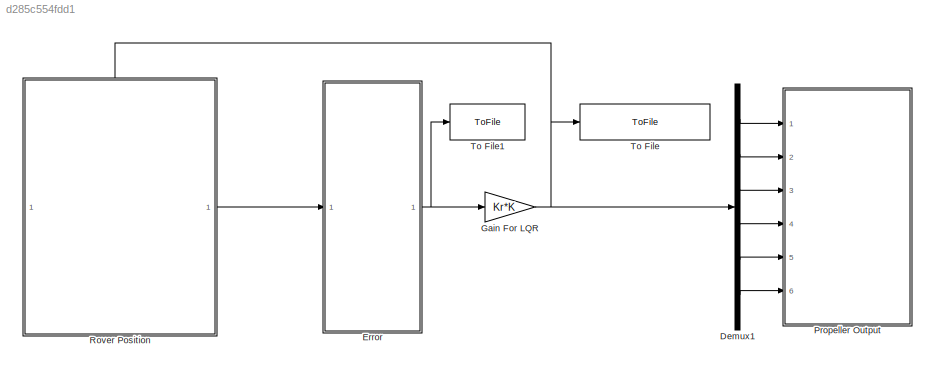
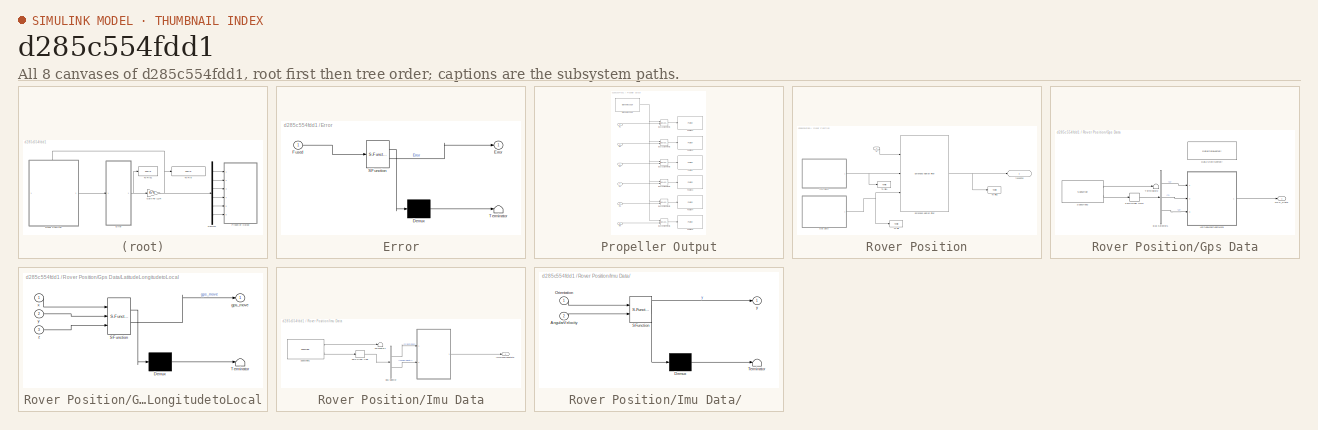
[diagram: thumbnail index - all 8 canvases of the model, root first then tree order]
MODEL slx_d285c554fdd1
KIND model
CONFIG AbsTol = auto
CONFIG EnableMultiTasking = off
CONFIG FixedStep = auto
CONFIG MaxStep = auto
CONFIG MinStep = auto
CONFIG RelTol = 1e-3
CONFIG SampleTimeConstraint = Unconstrained
CONFIG SolverName = VariableStepAuto
CONFIG StartTime = 0.0
CONFIG StopTime = 60.0
WORKSPACE source: mxarray member
WORKSPACE Gps_Data: Simulink.Signal (value not decoded)
BLOCK [Demux] Demux1
  Outputs = 6
  Ports = [1, 6]
BLOCK [SubSystem] Error
  ErrorFcn = Stateflow.Translate.translate
  PermitHierarchicalResolution = ExplicitOnly
  Ports = [1, 1]
  RequestExecContextInheritance = off
  SFBlockType = MATLAB Function
  TreatAsAtomicUnit = on
BLOCK [Demux] Error/ Demux 
  Outputs = 1
  Ports = [1, 1]
BLOCK [S-Function] Error/ SFunction 
  EnableBusSupport = on
  FunctionName = sf_sfun
  PortCounts = [1 2]
  Ports = [1, 2]
  SFcnIsStateOwnerBlock = off
  SFunctionDeploymentMode = off
  Tag = Stateflow S-Function 4
BLOCK [Terminator] Error/ Terminator 
BLOCK [Outport] Error/Error
BLOCK [Inport] Error/Fused
BLOCK [Gain] Gain For LQR
  Gain = Kr*K
  Multiplication = Matrix(K*u)
  RndMeth = Round
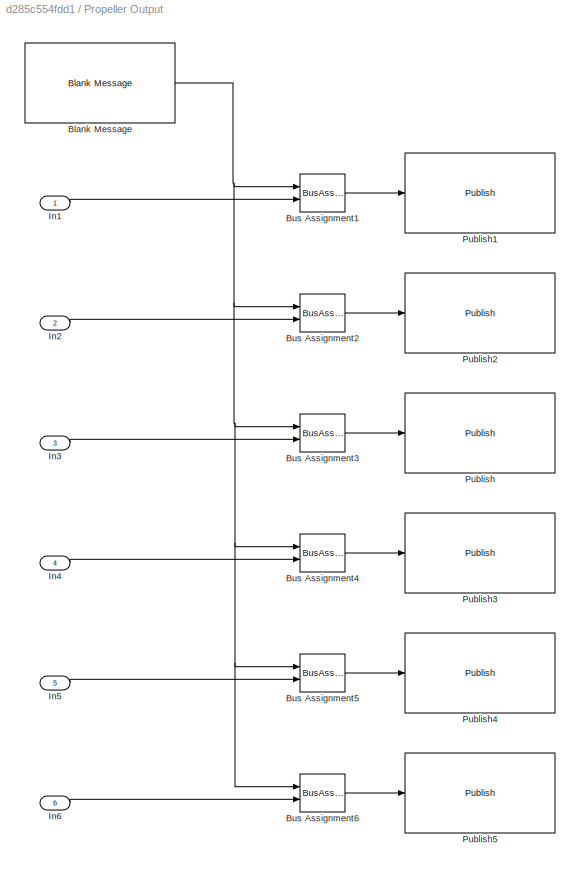
BLOCK [SubSystem] Propeller Output
  Ports = [6]
  RequestExecContextInheritance = off
BLOCK [Reference] Propeller Output/Blank Message  REF=robotlib/Blank Message
  Ports = [0, 1]
  SourceBlock = robotlib/Blank Message
  SourceProductBaseCode = RR
  SourceType = ROS Blank Message
BLOCK [BusAssignment] Propeller Output/Bus Assignment1
  AssignedSignals = Data
  Ports = [2, 1]
BLOCK [BusAssignment] Propeller Output/Bus Assignment2
  AssignedSignals = Data
  Ports = [2, 1]
BLOCK [BusAssignment] Propeller Output/Bus Assignment3
  AssignedSignals = Data
  Ports = [2, 1]
BLOCK [BusAssignment] Propeller Output/Bus Assignment4
  AssignedSignals = Data
  Ports = [2, 1]
BLOCK [BusAssignment] Propeller Output/Bus Assignment5
  AssignedSignals = Data
  Ports = [2, 1]
BLOCK [BusAssignment] Propeller Output/Bus Assignment6
  AssignedSignals = Data
  Ports = [2, 1]
BLOCK [Inport] Propeller Output/In1
  IconDisplay = Signal name
BLOCK [Inport] Propeller Output/In2
  IconDisplay = Signal name
  Port = 2
BLOCK [Inport] Propeller Output/In3
  IconDisplay = Signal name
  Port = 3
BLOCK [Inport] Propeller Output/In4
  IconDisplay = Signal name
  Port = 4
BLOCK [Inport] Propeller Output/In5
  IconDisplay = Signal name
  Port = 5
BLOCK [Inport] Propeller Output/In6
  IconDisplay = Signal name
  Port = 6
BLOCK [Reference] Propeller Output/Publish  REF=robotlib/Publish
  Ports = [1]
  SourceBlock = robotlib/Publish
  SourceProductBaseCode = RR
  SourceType = ROS Publish
BLOCK [Reference] Propeller Output/Publish1  REF=robotlib/Publish
  Ports = [1]
  SourceBlock = robotlib/Publish
  SourceProductBaseCode = RR
  SourceType = ROS Publish
BLOCK [Reference] Propeller Output/Publish2  REF=robotlib/Publish
  Ports = [1]
  SourceBlock = robotlib/Publish
  SourceProductBaseCode = RR
  SourceType = ROS Publish
BLOCK [Reference] Propeller Output/Publish3  REF=robotlib/Publish
  Ports = [1]
  SourceBlock = robotlib/Publish
  SourceProductBaseCode = RR
  SourceType = ROS Publish
BLOCK [Reference] Propeller Output/Publish4  REF=robotlib/Publish
  Ports = [1]
  SourceBlock = robotlib/Publish
  SourceProductBaseCode = RR
  SourceType = ROS Publish
BLOCK [Reference] Propeller Output/Publish5  REF=robotlib/Publish
  Ports = [1]
  SourceBlock = robotlib/Publish
  SourceProductBaseCode = RR
  SourceType = ROS Publish
BLOCK [SubSystem] Rover Position
  PortSchema = {"entries":[{"content":{"sides":[{"content":{"connectorIds":[]},"type":"ConnectorPlacement.EquallySpacedRectSide","uuid":"70bf1008-d6b2-49b6-af88-753ab581769c"},{"content":{"connectorIds":["Out1"],"side":"RIGHT"},"type":"ConnectorPlacement.EquallySpacedRectSide","uuid":"04ddecda-8c46-4437-987b-fe54c22cd984"},{"content":{"connectorIds":["In1"],"side":"TOP"},"type":"ConnectorPlacement.EquallySpacedR...<+240ch>
  Ports = [1, 1]
  RequestExecContextInheritance = off
BLOCK [Reference] Rover Position/Extended Kalman Filter  REF=sharedTrackingLibrary/Extended Kalman Filter
  Ports = [3, 1]
  SourceBlock = sharedTrackingLibrary/Extended Kalman Filter
  SourceProductBaseCode = CT,DR,TF,ID,LP,NV,AR,RO,RR,UV,VE
  SourceType = Extended Kalman Filter
BLOCK [SubSystem] Rover Position/Gps Data
  Ports = [0, 1]
  RequestExecContextInheritance = off
BLOCK [BusSelector] Rover Position/Gps Data/Bus Selector1
  OutputSignals = Pose.Pose.Position.X,Pose.Pose.Position.Y,Pose.Pose.Position.Z
  Ports = [1, 3]
BLOCK [DataStoreMemory] Rover Position/Gps Data/Data Store Memory
  DataStoreName = gps_data
  InitialValue = [0;0;0]
  OutDataTypeStr = double
  ReadBeforeWriteMsg = warning
  ShowAdditionalParam = off
  SignalType = real
  VectorParams1D = off
  WriteAfterReadMsg = warning
  WriteAfterWriteMsg = warning
BLOCK [Outport] Rover Position/Gps Data/GPS_State
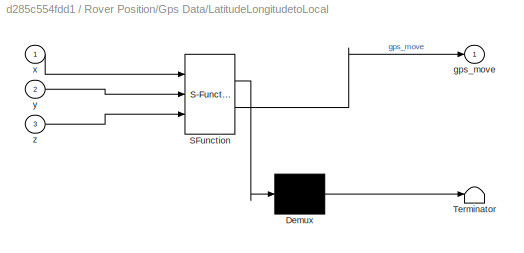
BLOCK [SubSystem] Rover Position/Gps Data/LatitudeLongitudetoLocal
  ErrorFcn = Stateflow.Translate.translate
  PermitHierarchicalResolution = ExplicitOnly
  Ports = [3, 1]
  RequestExecContextInheritance = off
  SFBlockType = MATLAB Function
  SystemSampleTime = Ts
  TreatAsAtomicUnit = on
BLOCK [Demux] Rover Position/Gps Data/LatitudeLongitudetoLocal/ Demux 
  Outputs = 1
  Ports = [1, 1]
BLOCK [S-Function] Rover Position/Gps Data/LatitudeLongitudetoLocal/ SFunction 
  EnableBusSupport = on
  FunctionName = sf_sfun
  PortCounts = [3 2]
  Ports = [3, 2]
  SFcnIsStateOwnerBlock = off
  SFunctionDeploymentMode = off
  Tag = Stateflow S-Function 1
BLOCK [Terminator] Rover Position/Gps Data/LatitudeLongitudetoLocal/ Terminator 
BLOCK [Outport] Rover Position/Gps Data/LatitudeLongitudetoLocal/gps_move
BLOCK [Inport] Rover Position/Gps Data/LatitudeLongitudetoLocal/x
BLOCK [Inport] Rover Position/Gps Data/LatitudeLongitudetoLocal/y
  Port = 2
BLOCK [Inport] Rover Position/Gps Data/LatitudeLongitudetoLocal/z
  Port = 3
BLOCK [Reference] Rover Position/Gps Data/Subscribe2  REF=robotlib/Subscribe
  Ports = [0, 2]
  SourceBlock = robotlib/Subscribe
  SourceProductBaseCode = RR
  SourceType = ROS Subscribe
BLOCK [Terminator] Rover Position/Gps Data/Terminator2
BLOCK [ZeroOrderHold] Rover Position/Gps Data/Zero-Order Hold
  SampleTime = Ts
BLOCK [SubSystem] Rover Position/Imu Data
  Ports = [0, 1]
  RequestExecContextInheritance = off
BLOCK [SubSystem] Rover Position/Imu Data/ 
  ErrorFcn = Stateflow.Translate.translate
  PermitHierarchicalResolution = ExplicitOnly
  Ports = [2, 1]
  RequestExecContextInheritance = off
  SFBlockType = MATLAB Function
  TreatAsAtomicUnit = on
BLOCK [Demux] Rover Position/Imu Data/ / Demux 
  Outputs = 1
  Ports = [1, 1]
BLOCK [S-Function] Rover Position/Imu Data/ / SFunction 
  EnableBusSupport = on
  FunctionName = sf_sfun
  PortCounts = [2 2]
  Ports = [2, 2]
  SFcnIsStateOwnerBlock = off
  SFunctionDeploymentMode = off
  Tag = Stateflow S-Function 5
BLOCK [Terminator] Rover Position/Imu Data/ / Terminator 
BLOCK [Inport] Rover Position/Imu Data/ /AngularVelocity
  Port = 2
BLOCK [Inport] Rover Position/Imu Data/ /Orientation
BLOCK [Outport] Rover Position/Imu Data/ /y
BLOCK [BusSelector] Rover Position/Imu Data/Bus Selector
  OutputSignals = Orientation,AngularVelocity
  Ports = [1, 2]
BLOCK [Outport] Rover Position/Imu Data/ImuObservedState
BLOCK [Reference] Rover Position/Imu Data/Subscribe1  REF=robotlib/Subscribe
  Ports = [0, 2]
  SourceBlock = robotlib/Subscribe
  SourceProductBaseCode = RR
  SourceType = ROS Subscribe
BLOCK [Terminator] Rover Position/Imu Data/Terminator1
BLOCK [ZeroOrderHold] Rover Position/Imu Data/Zero-Order Hold
  SampleTime = Ts
BLOCK [ToFile] Rover Position/To File
  Filename = Gps.mat
  MatrixName = Coordinate
  Ports = [1]
  SampleTime = Ts
  SaveFormat = Timeseries
BLOCK [ToFile] Rover Position/To File1
  Filename = Imu.mat
  MatrixName = ImuCoordinate
  Ports = [1]
  SampleTime = Ts
  SaveFormat = Timeseries
BLOCK [ToFile] Rover Position/To File2
  Filename = Fused.mat
  MatrixName = Fused
  Ports = [1]
  SampleTime = Ts
  SaveFormat = Timeseries
BLOCK [Inport] Rover Position/U
BLOCK [Outport] Rover Position/fusedPos
  IconDisplay = Signal name
BLOCK [ToFile] To File
  Filename = AllocThruster.mat
  Ports = [1]
  SampleTime = Ts
  SaveFormat = Timeseries
BLOCK [ToFile] To File1
  Filename = Error.mat
  MatrixName = Error
  Ports = [1]
  SampleTime = Ts
  SaveFormat = Timeseries
ANNOTATION (root): Control Section This section the gain K is calculated using Linear Quadratic Regulator
ANNOTATION (root): State Estimation Section State Estimation used Extended Kalman Filter
LINE Demux1:1 -> Propeller Output:1
LINE Demux1:2 -> Propeller Output:2
LINE Demux1:3 -> Propeller Output:3
LINE Demux1:4 -> Propeller Output:4
LINE Demux1:5 -> Propeller Output:5
LINE Demux1:6 -> Propeller Output:6
NET Error:1 -> Gain For LQR:1, To File1:1
NET Gain For LQR:1 -> Demux1:1, Rover Position:1, To File:1
NET Propeller Output/Blank Message:1 -> Propeller Output/Bus Assignment1:1, Propeller Output/Bus Assignment2:1, Propeller Output/Bus Assignment3:1, Propeller Output/Bus Assignment4:1, Propeller Output/Bus Assignment5:1, Propeller Output/Bus Assignment6:1
LINE Propeller Output/Bus Assignment1:1 -> Propeller Output/Publish1:1
LINE Propeller Output/Bus Assignment2:1 -> Propeller Output/Publish2:1
LINE Propeller Output/Bus Assignment3:1 -> Propeller Output/Publish:1
LINE Propeller Output/Bus Assignment4:1 -> Propeller Output/Publish3:1
LINE Propeller Output/Bus Assignment5:1 -> Propeller Output/Publish4:1
LINE Propeller Output/Bus Assignment6:1 -> Propeller Output/Publish5:1
LINE Propeller Output/In1:1 -> Propeller Output/Bus Assignment1:2
LINE Propeller Output/In2:1 -> Propeller Output/Bus Assignment2:2
LINE Propeller Output/In3:1 -> Propeller Output/Bus Assignment3:2
LINE Propeller Output/In4:1 -> Propeller Output/Bus Assignment4:2
LINE Propeller Output/In5:1 -> Propeller Output/Bus Assignment5:2
LINE Propeller Output/In6:1 -> Propeller Output/Bus Assignment6:2
NET Rover Position/Extended Kalman Filter:1 -> Rover Position/To File2:1, Rover Position/fusedPos:1
LINE Rover Position/Gps Data/Bus Selector1:1 -> Rover Position/Gps Data/LatitudeLongitudetoLocal:1
LINE Rover Position/Gps Data/Bus Selector1:2 -> Rover Position/Gps Data/LatitudeLongitudetoLocal:2
LINE Rover Position/Gps Data/Bus Selector1:3 -> Rover Position/Gps Data/LatitudeLongitudetoLocal:3
LINE Rover Position/Gps Data/LatitudeLongitudetoLocal:1 -> Rover Position/Gps Data/GPS_State:1
LINE Rover Position/Gps Data/Subscribe2:1 -> Rover Position/Gps Data/Terminator2:1
LINE Rover Position/Gps Data/Subscribe2:2 -> Rover Position/Gps Data/Zero-Order Hold:1
LINE Rover Position/Gps Data/Zero-Order Hold:1 -> Rover Position/Gps Data/Bus Selector1:1
NET Rover Position/Gps Data:1 -> Rover Position/Extended Kalman Filter:3, Rover Position/To File:1
LINE Rover Position/Imu Data/ :1 -> Rover Position/Imu Data/ImuObservedState:1
LINE Rover Position/Imu Data/Bus Selector:1 -> Rover Position/Imu Data/ :1
LINE Rover Position/Imu Data/Bus Selector:2 -> Rover Position/Imu Data/ :2
LINE Rover Position/Imu Data/Subscribe1:1 -> Rover Position/Imu Data/Terminator1:1
LINE Rover Position/Imu Data/Subscribe1:2 -> Rover Position/Imu Data/Zero-Order Hold:1
LINE Rover Position/Imu Data/Zero-Order Hold:1 -> Rover Position/Imu Data/Bus Selector:1
NET Rover Position/Imu Data:1 -> Rover Position/Extended Kalman Filter:2, Rover Position/To File1:1
LINE Rover Position/U:1 -> Rover Position/Extended Kalman Filter:1
LINE Rover Position:1 -> Error:1
note: NET lines group one-source signal fan-out (src -> all destinations, sorted); 1:1 wires keep LINE
CHART Rover Position/Gps Data/LatitudeLongitudetoLocal states=1 transitions=1
  STATE_LABEL 'eML_blk_kernel()'
  STATE_LABEL 'SCRIPT:\nfunction gps_move = fcn(x,y,z)\nglobal gps_data;\n\ngps_data(1) = x - 468441.325499; \ngps_data(2) = y - 3713776.85777;\ngps_data(3) = z ;\n\ngps_move = gps_data;\n'
CHART Error states=1 transitions=1
  STATE_LABEL 'eML_blk_kernel()'
  STATE_LABEL 'SCRIPT:\nfunction Error = fcn(Fused)\n\n%Set your reference\nreference = [10;5;0;0;0;0;0;0;0;0;0;0];\nError = reference-Fused;\n'
CHART Rover Position/Imu Data/  states=1 transitions=1
  STATE_LABEL 'eML_blk_kernel()'
  STATE_LABEL 'SCRIPT:\nfunction y = fcn(Orientation,AngularVelocity)\n\n\n\n\ny = [Orientation.X;Orientation.Y;Orientation.Z;AngularVelocity.X;AngularVelocity.Y;AngularVelocity.Z];\n'
CHART  states=0 transitions=0
CHART  states=0 transitions=0
CHART  states=0 transitions=0
